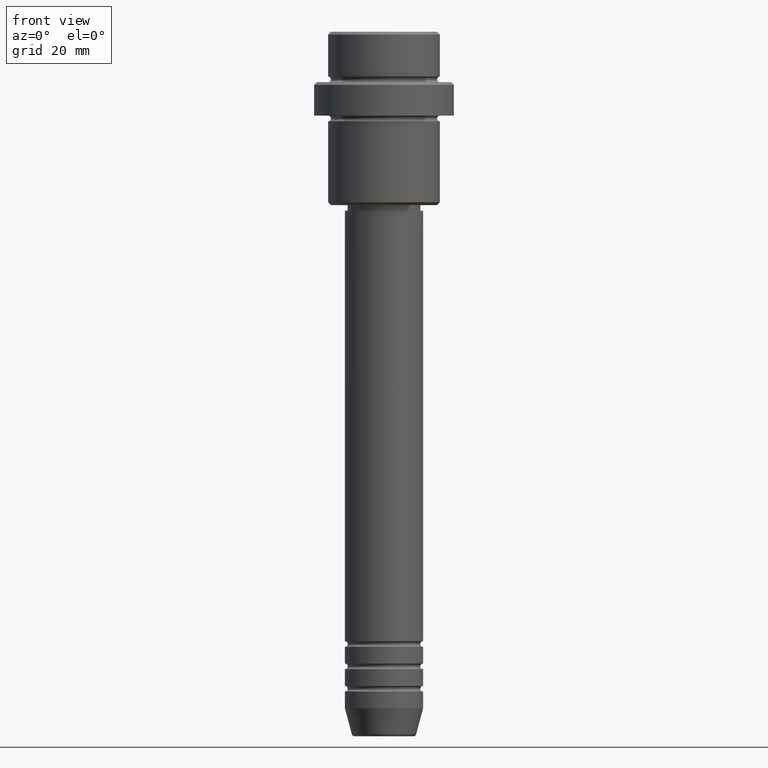
[diagram: clean part render]
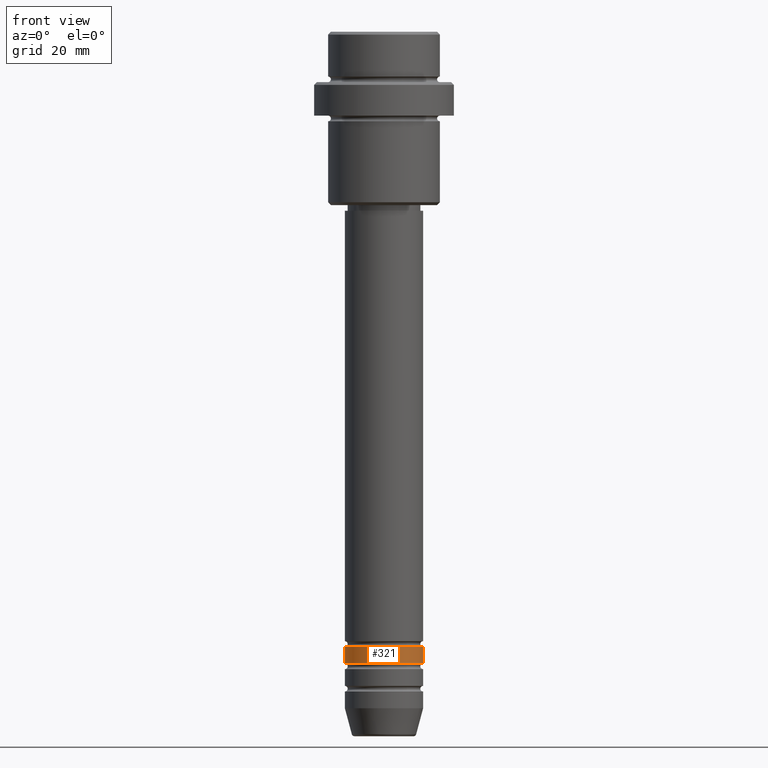
[diagram: same view with one face highlighted and labeled with its STEP entity id]
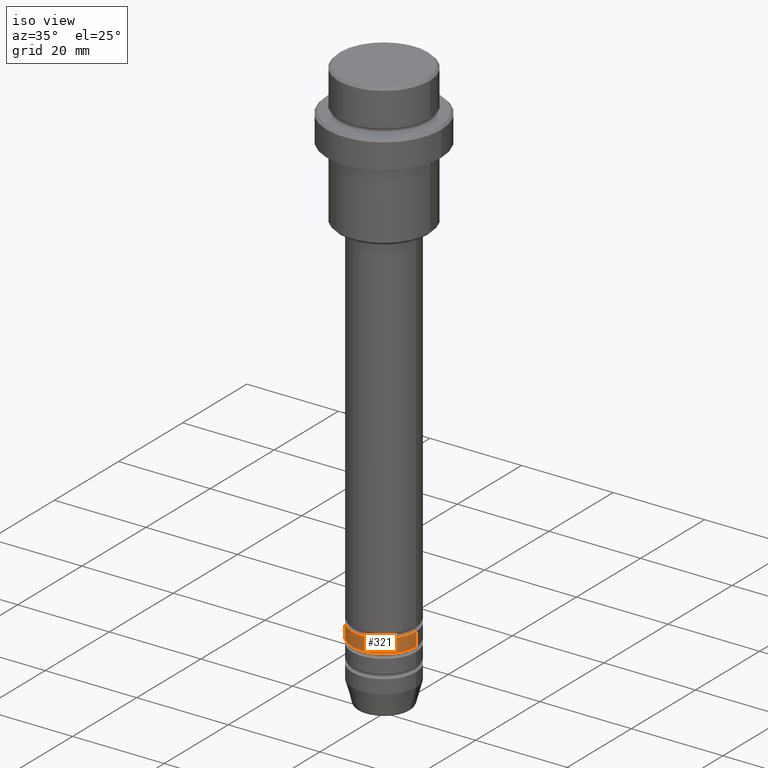
[diagram: same view with one face highlighted and labeled with its STEP entity id]
A machine part, front view. The second image highlights one B-rep face of the part: STEP entity #321.
A second angle (iso view) of the same face is appended — the face is thin or edge-on in the first view.
In plain terms, the highlighted cylindrical surface (partial cylindrical patch) has radius 7 mm, axis along (-0, -0, 1).
Its self-contained STEP definition (entity closure, byte-faithful):
#34 = CYLINDRICAL_SURFACE ( 'NONE', #157, 7.000000000000000000 ) ;
#50 = FACE_OUTER_BOUND ( 'NONE', #100, .T. ) ;
#67 = DIRECTION ( 'NONE',  ( -0.000000000000000000, -0.000000000000000000, 1.000000000000000000 ) ) ;
#75 = CARTESIAN_POINT ( 'NONE',  ( 7.000000000000000000, 0.000000000000000000, 0.000000000000000000 ) ) ;
#100 = EDGE_LOOP ( 'NONE', ( #1065, #1241, #836, #886 ) ) ;
#157 = AXIS2_PLACEMENT_3D ( 'NONE', #493, #912, #1145 ) ;
#177 = CARTESIAN_POINT ( 'NONE',  ( 0.000000000000000000, 0.000000000000000000, -109.9999999999998721 ) ) ;
#227 = VERTEX_POINT ( 'NONE', #1091 ) ;
#233 = AXIS2_PLACEMENT_3D ( 'NONE', #268, #708, #1036 ) ;
#239 = AXIS2_PLACEMENT_3D ( 'NONE', #177, #946, #1177 ) ;
#268 = CARTESIAN_POINT ( 'NONE',  ( 0.000000000000000000, 0.000000000000000000, -112.9999999999998721 ) ) ;
#321 = ADVANCED_FACE ( 'NONE', ( #50 ), #34, .T. ) ;
#369 = VECTOR ( 'NONE', #67, 1000.000000000000000 ) ;
#386 = EDGE_CURVE ( 'NONE', #1176, #882, #1347, .T. ) ;
#458 = EDGE_CURVE ( 'NONE', #882, #736, #622, .T. ) ;
#493 = CARTESIAN_POINT ( 'NONE',  ( 0.000000000000000000, 0.000000000000000000, 0.000000000000000000 ) ) ;
#520 = DIRECTION ( 'NONE',  ( -0.000000000000000000, -0.000000000000000000, 1.000000000000000000 ) ) ;
#616 = CARTESIAN_POINT ( 'NONE',  ( 7.000000000000000000, 0.000000000000000000, -112.9999999999998721 ) ) ;
#622 = LINE ( 'NONE', #75, #1366 ) ;
#708 = DIRECTION ( 'NONE',  ( -0.000000000000000000, -0.000000000000000000, 1.000000000000000000 ) ) ;
#736 = VERTEX_POINT ( 'NONE', #1257 ) ;
#833 = LINE ( 'NONE', #1266, #369 ) ;
#836 = ORIENTED_EDGE ( 'NONE', *, *, #458, .T. ) ;
#882 = VERTEX_POINT ( 'NONE', #616 ) ;
#886 = ORIENTED_EDGE ( 'NONE', *, *, #1294, .F. ) ;
#912 = DIRECTION ( 'NONE',  ( -0.000000000000000000, -0.000000000000000000, 1.000000000000000000 ) ) ;
#946 = DIRECTION ( 'NONE',  ( -0.000000000000000000, -0.000000000000000000, 1.000000000000000000 ) ) ;
#962 = EDGE_CURVE ( 'NONE', #1176, #227, #833, .T. ) ;
#1010 = CIRCLE ( 'NONE', #239, 7.000000000000000000 ) ;
#1036 = DIRECTION ( 'NONE',  ( 1.000000000000000000, 0.000000000000000000, 0.000000000000000000 ) ) ;
#1065 = ORIENTED_EDGE ( 'NONE', *, *, #962, .F. ) ;
#1091 = CARTESIAN_POINT ( 'NONE',  ( -7.000000000000000000, 8.572527594031473190E-16, -109.9999999999998721 ) ) ;
#1121 = CARTESIAN_POINT ( 'NONE',  ( -7.000000000000000000, 8.572527594031473190E-16, -112.9999999999998721 ) ) ;
#1145 = DIRECTION ( 'NONE',  ( 1.000000000000000000, 0.000000000000000000, 0.000000000000000000 ) ) ;
#1176 = VERTEX_POINT ( 'NONE', #1121 ) ;
#1177 = DIRECTION ( 'NONE',  ( 1.000000000000000000, 0.000000000000000000, 0.000000000000000000 ) ) ;
#1241 = ORIENTED_EDGE ( 'NONE', *, *, #386, .T. ) ;
#1257 = CARTESIAN_POINT ( 'NONE',  ( 7.000000000000000000, 0.000000000000000000, -109.9999999999998721 ) ) ;
#1266 = CARTESIAN_POINT ( 'NONE',  ( -7.000000000000000000, 8.572527594031473190E-16, 0.000000000000000000 ) ) ;
#1294 = EDGE_CURVE ( 'NONE', #227, #736, #1010, .T. ) ;
#1347 = CIRCLE ( 'NONE', #233, 7.000000000000000000 ) ;
#1366 = VECTOR ( 'NONE', #520, 1000.000000000000000 ) ;